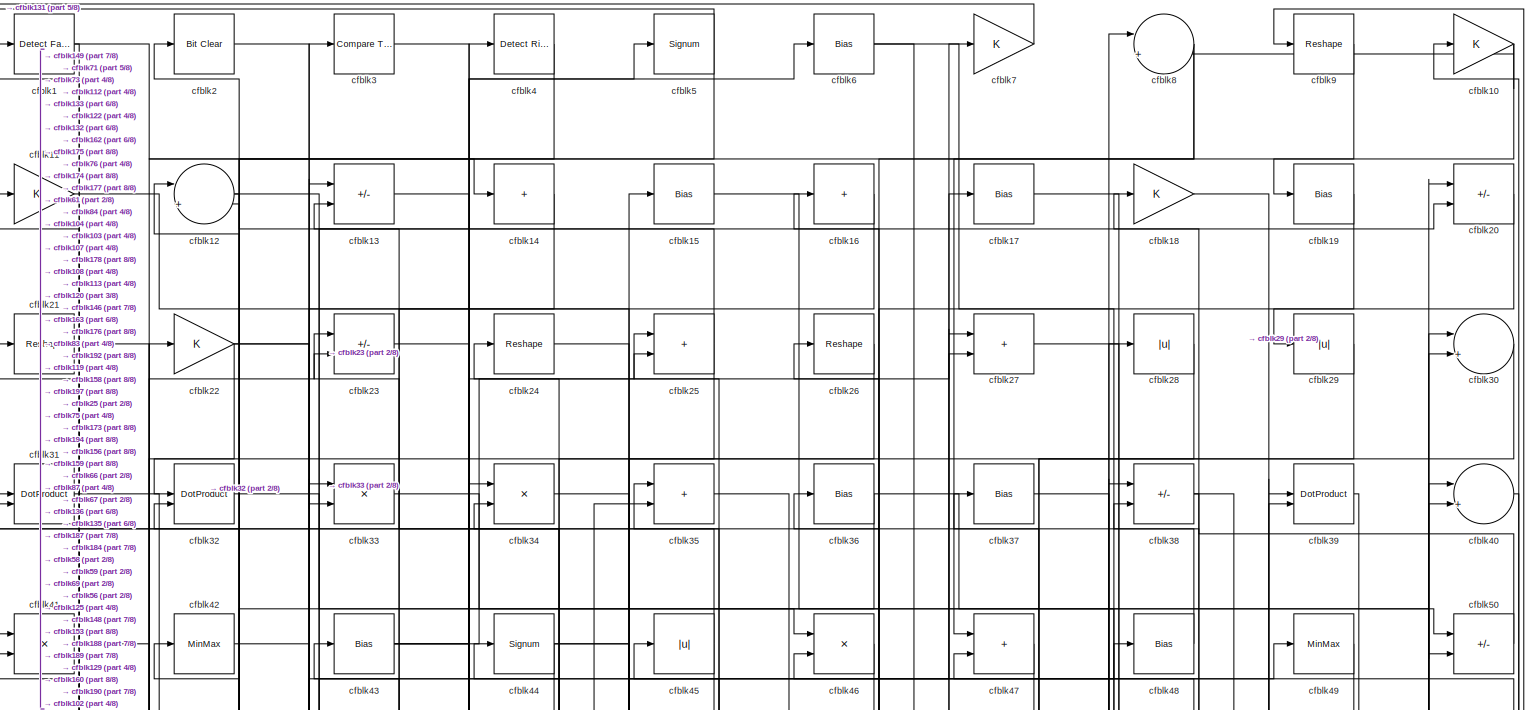
[diagram: root canvas - part 1/8, full width, top band]
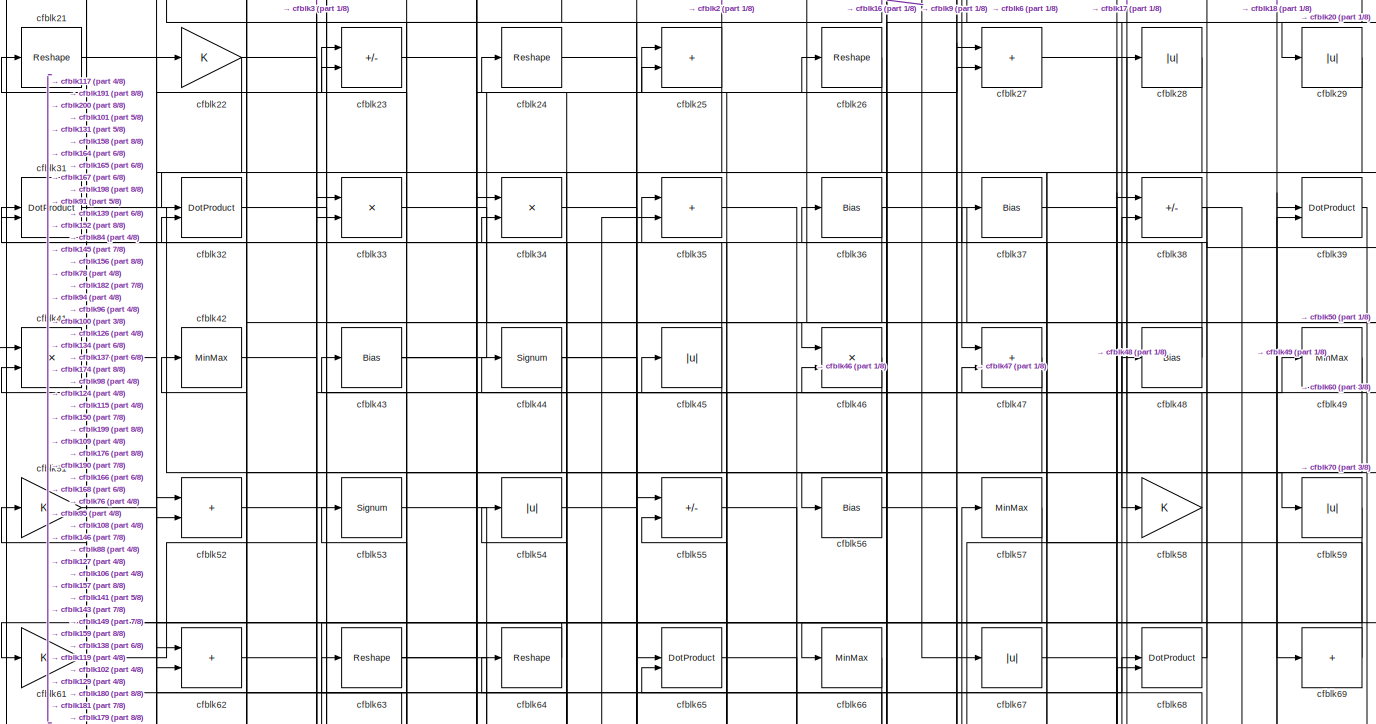
[diagram: root canvas - part 2/8, full width, top band]
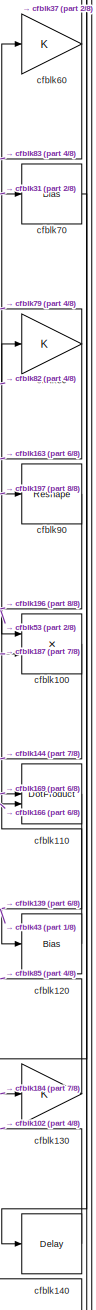
[diagram: root canvas - part 3/8, middle right region]
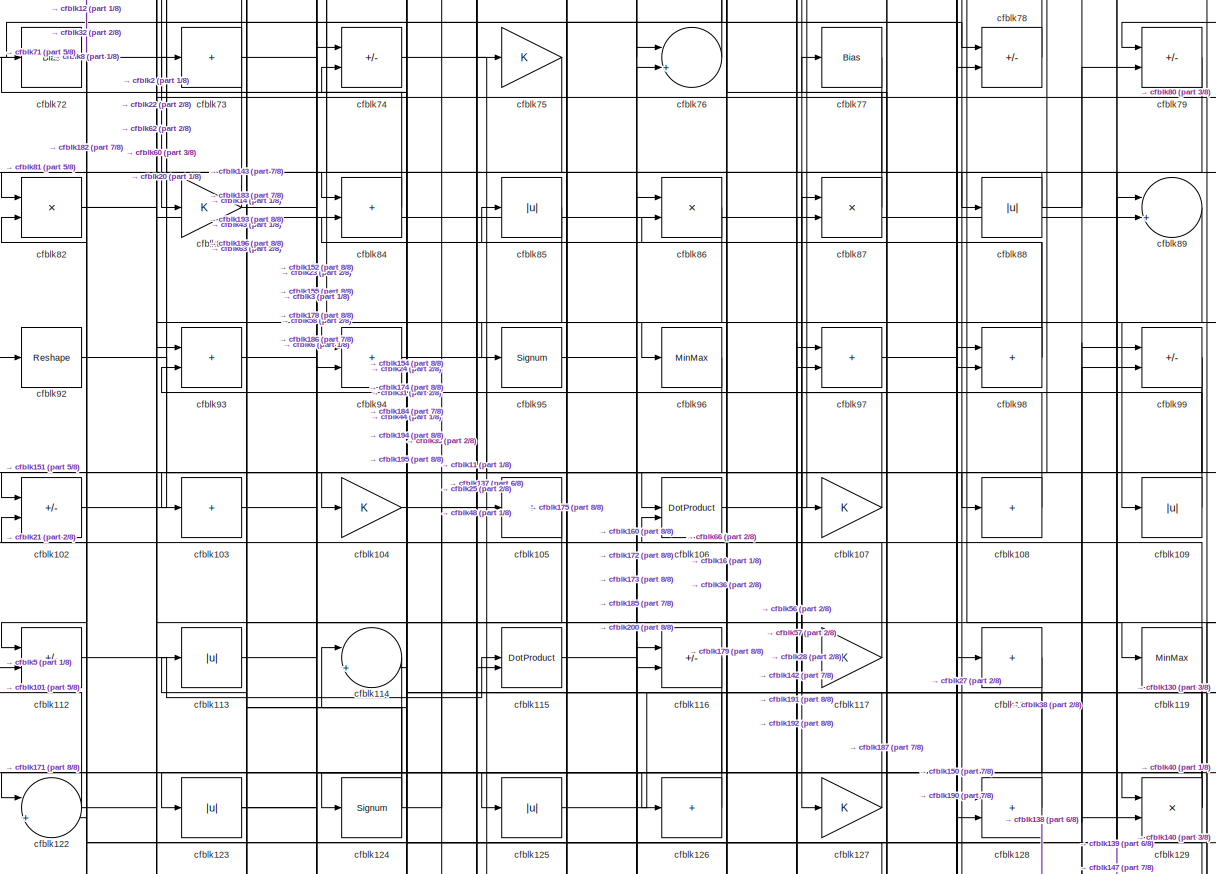
[diagram: root canvas - part 4/8, full width, middle band]
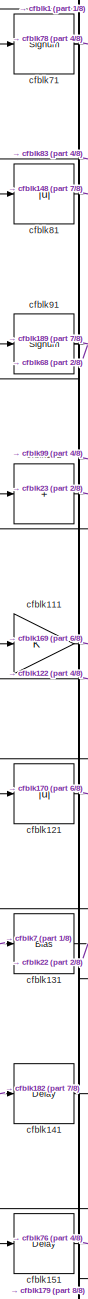
[diagram: root canvas - part 5/8, middle left region]
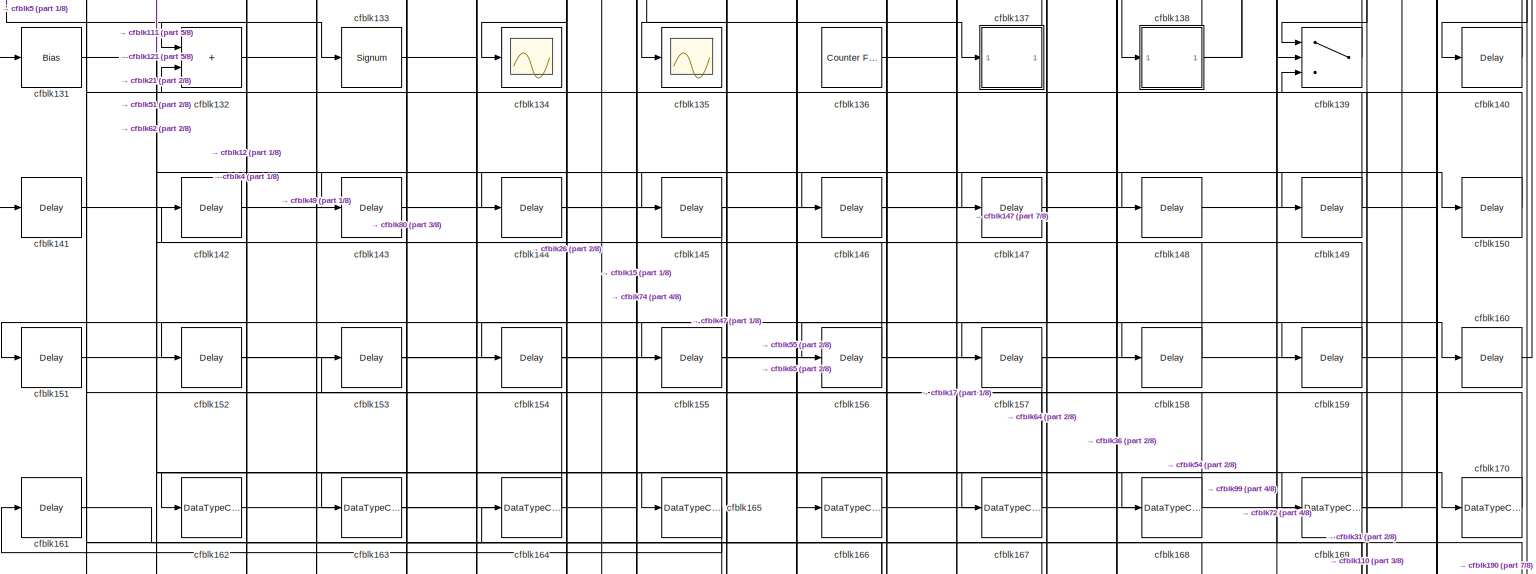
[diagram: root canvas - part 6/8, full width, bottom band]
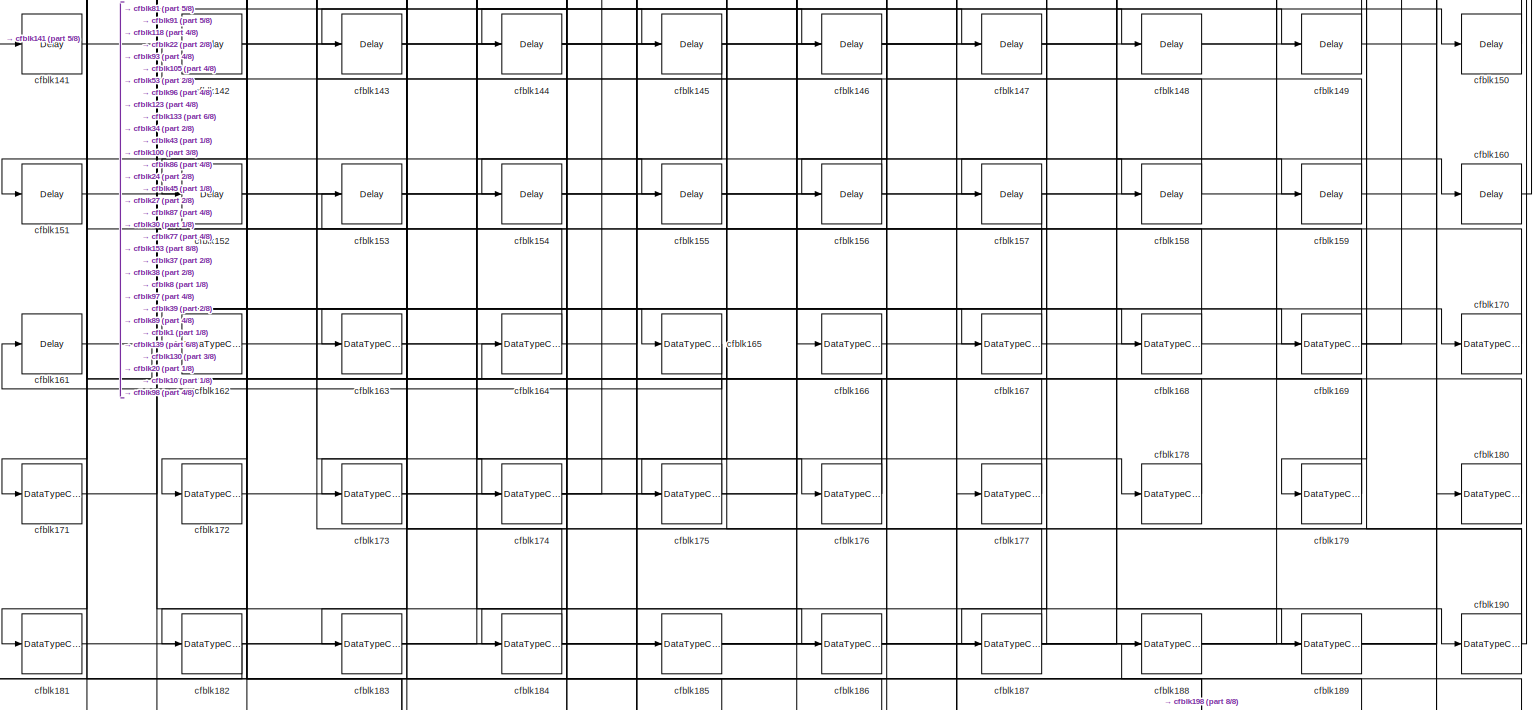
[diagram: root canvas - part 7/8, full width, bottom band]
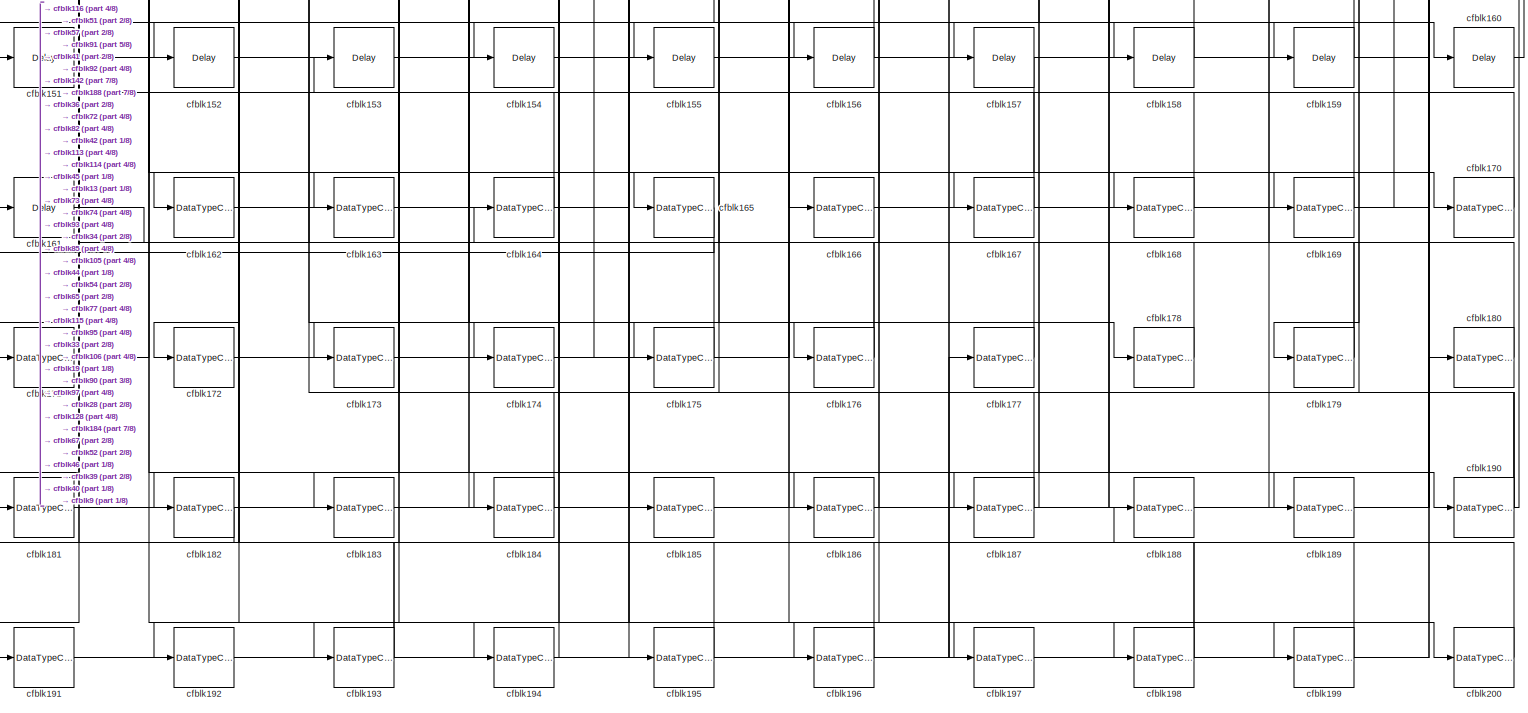
[diagram: root canvas - part 8/8, full width, bottom band]
MODEL slx_34461e3ff55c
KIND model
CONFIG AbsTol = auto
CONFIG EnableMultiTasking = off
CONFIG FixedStep = auto
CONFIG MaxStep = auto
CONFIG MinStep = auto
CONFIG RelTol = 1e-3
CONFIG SampleTimeConstraint = Unconstrained
CONFIG SolverName = VariableStepAuto
CONFIG StartTime = 0.0
CONFIG StopTime = 10.0
BLOCK [Reference] cfblk1  REF=hdlsllib/Logic and Bit
Operations/Detect Fall
Negative
  SourceBlock = hdlsllib/Logic and Bit\nOperations/Detect Fall\nNegative
  SourceType = Detect Fall Negative
BLOCK [Gain] cfblk10
BLOCK [Product] cfblk100
  Inputs = */
  RndMeth = Zero
  SaturateOnIntegerOverflow = on
BLOCK [Sum] cfblk101
  IconShape = rectangular
  Inputs = +
BLOCK [Sum] cfblk102
  IconShape = rectangular
  Inputs = +-
BLOCK [Sum] cfblk103
  IconShape = rectangular
  Inputs = +
BLOCK [Gain] cfblk104
BLOCK [Sum] cfblk105
  IconShape = rectangular
  Inputs = +
BLOCK [DotProduct] cfblk106
  OutDataTypeStr = Inherit: Inherit via internal rule
BLOCK [Gain] cfblk107
BLOCK [Sum] cfblk108
  IconShape = rectangular
  Inputs = +
BLOCK [Abs] cfblk109
  SaturateOnIntegerOverflow = off
BLOCK [Gain] cfblk11
BLOCK [DotProduct] cfblk110
  OutDataTypeStr = Inherit: Inherit via internal rule
BLOCK [Gain] cfblk111
BLOCK [Sum] cfblk112
  IconShape = rectangular
  Inputs = +-
BLOCK [Abs] cfblk113
  SaturateOnIntegerOverflow = off
BLOCK [Sum] cfblk114
  Inputs = |++
BLOCK [DotProduct] cfblk115
  OutDataTypeStr = Inherit: Inherit via internal rule
BLOCK [Sum] cfblk116
  IconShape = rectangular
  Inputs = +-
BLOCK [Gain] cfblk117
BLOCK [Sum] cfblk118
  IconShape = rectangular
  Inputs = +
BLOCK [MinMax] cfblk119
BLOCK [Sum] cfblk12
  Inputs = |++
BLOCK [Bias] cfblk120
  Bias = 0.0
  SaturateOnIntegerOverflow = off
BLOCK [Abs] cfblk121
  SaturateOnIntegerOverflow = off
BLOCK [Sum] cfblk122
  Inputs = |++
BLOCK [Abs] cfblk123
  SaturateOnIntegerOverflow = off
BLOCK [Signum] cfblk124
BLOCK [Abs] cfblk125
  SaturateOnIntegerOverflow = off
BLOCK [Sum] cfblk126
  IconShape = rectangular
  Inputs = +
BLOCK [Gain] cfblk127
BLOCK [Sum] cfblk128
  IconShape = rectangular
BLOCK [Product] cfblk129
  Inputs = */
  RndMeth = Zero
  SaturateOnIntegerOverflow = on
BLOCK [Sum] cfblk13
  IconShape = rectangular
  Inputs = +-
BLOCK [Gain] cfblk130
BLOCK [Bias] cfblk131
  Bias = 0.0
  SaturateOnIntegerOverflow = off
BLOCK [Sum] cfblk132
  IconShape = rectangular
BLOCK [Signum] cfblk133
BLOCK [Scope] cfblk134
  Floating = off
  NumInputPorts = 1
  ScopeSpecificationString = Simulink.scopes.TimeScopeBlockCfg('CurrentConfiguration', extmgr.ConfigurationSet(extmgr.Configuration('Core','General UI',true),extmgr.Configuration('Core','Source UI',true),extmgr.Configuration('Sources','WiredSimulink',true,'DataLoggingVariableName','ScopeData2','DataLoggingSaveFormat','Array','DataLoggingLimitDataPoints',true,'DataLoggingDecimation','1'),extmgr.Configuration('Visuals','Time Do...<+868ch>
BLOCK [Scope] cfblk135
  Floating = off
  NumInputPorts = 1
  ScopeSpecificationString = Simulink.scopes.TimeScopeBlockCfg('CurrentConfiguration', extmgr.ConfigurationSet(extmgr.Configuration('Core','General UI',true),extmgr.Configuration('Core','Source UI',true),extmgr.Configuration('Sources','WiredSimulink',true,'DataLoggingVariableName','ScopeData2','DataLoggingSaveFormat','Array','DataLoggingLimitDataPoints',true,'DataLoggingDecimation','1'),extmgr.Configuration('Visuals','Time Do...<+868ch>
BLOCK [Reference] cfblk136  REF=hdlsllib/Sources/Counter
Free-Running
  SourceBlock = hdlsllib/Sources/Counter\nFree-Running
  SourceType = Counter Free-Running
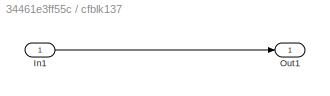
BLOCK [SubSystem] cfblk137
  LibrarySourceBlock = hdlsllib/Ports &\nSubsystems/Subsystem
BLOCK [Inport] cfblk137/In1
BLOCK [Outport] cfblk137/Out1
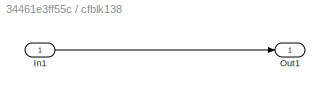
BLOCK [SubSystem] cfblk138
  LibrarySourceBlock = hdlsllib/Ports &\nSubsystems/Subsystem
BLOCK [Inport] cfblk138/In1
BLOCK [Outport] cfblk138/Out1
BLOCK [Switch] cfblk139
  InputSameDT = off
  SaturateOnIntegerOverflow = off
BLOCK [Sum] cfblk14
  IconShape = rectangular
  Inputs = +
BLOCK [Delay] cfblk140
  InputPortMap = u0
  SampleTime = 1
BLOCK [Delay] cfblk141
  InputPortMap = u0
  SampleTime = 1
BLOCK [Delay] cfblk142
  InputPortMap = u0
  SampleTime = 1
BLOCK [Delay] cfblk143
  InputPortMap = u0
  SampleTime = 1
BLOCK [Delay] cfblk144
  InputPortMap = u0
  SampleTime = 1
BLOCK [Delay] cfblk145
  InputPortMap = u0
  SampleTime = 1
BLOCK [Delay] cfblk146
  InputPortMap = u0
  SampleTime = 1
BLOCK [Delay] cfblk147
  InputPortMap = u0
  SampleTime = 1
BLOCK [Delay] cfblk148
  InputPortMap = u0
  SampleTime = 1
BLOCK [Delay] cfblk149
  InputPortMap = u0
  SampleTime = 1
BLOCK [Bias] cfblk15
  Bias = 0.0
  SaturateOnIntegerOverflow = off
BLOCK [Delay] cfblk150
  InputPortMap = u0
  SampleTime = 1
BLOCK [Delay] cfblk151
  InputPortMap = u0
  SampleTime = 1
BLOCK [Delay] cfblk152
  InputPortMap = u0
  SampleTime = 1
BLOCK [Delay] cfblk153
  InputPortMap = u0
  SampleTime = 1
BLOCK [Delay] cfblk154
  InputPortMap = u0
  SampleTime = 1
BLOCK [Delay] cfblk155
  InputPortMap = u0
  SampleTime = 1
BLOCK [Delay] cfblk156
  InputPortMap = u0
  SampleTime = 1
BLOCK [Delay] cfblk157
  InputPortMap = u0
  SampleTime = 1
BLOCK [Delay] cfblk158
  InputPortMap = u0
  SampleTime = 1
BLOCK [Delay] cfblk159
  InputPortMap = u0
  SampleTime = 1
BLOCK [Sum] cfblk16
  IconShape = rectangular
  Inputs = +
BLOCK [Delay] cfblk160
  InputPortMap = u0
  SampleTime = 1
BLOCK [Delay] cfblk161
  InputPortMap = u0
  SampleTime = 1
BLOCK [DataTypeConversion] cfblk162
  OutDataTypeStr = uint8
  RndMeth = Floor
  SaturateOnIntegerOverflow = off
BLOCK [DataTypeConversion] cfblk163
  OutDataTypeStr = uint8
  RndMeth = Floor
  SaturateOnIntegerOverflow = off
BLOCK [DataTypeConversion] cfblk164
  OutDataTypeStr = uint8
  RndMeth = Floor
  SaturateOnIntegerOverflow = off
BLOCK [DataTypeConversion] cfblk165
  OutDataTypeStr = uint8
  RndMeth = Floor
  SaturateOnIntegerOverflow = off
BLOCK [DataTypeConversion] cfblk166
  OutDataTypeStr = uint8
  RndMeth = Floor
  SaturateOnIntegerOverflow = off
BLOCK [DataTypeConversion] cfblk167
  OutDataTypeStr = uint8
  RndMeth = Floor
  SaturateOnIntegerOverflow = off
BLOCK [DataTypeConversion] cfblk168
  OutDataTypeStr = uint8
  RndMeth = Floor
  SaturateOnIntegerOverflow = off
BLOCK [DataTypeConversion] cfblk169
  RndMeth = Floor
  SaturateOnIntegerOverflow = off
BLOCK [Bias] cfblk17
  Bias = 0.0
  SaturateOnIntegerOverflow = off
BLOCK [DataTypeConversion] cfblk170
  OutDataTypeStr = uint8
  RndMeth = Floor
  SaturateOnIntegerOverflow = off
BLOCK [DataTypeConversion] cfblk171
  OutDataTypeStr = uint8
  RndMeth = Floor
  SaturateOnIntegerOverflow = off
BLOCK [DataTypeConversion] cfblk172
  OutDataTypeStr = uint8
  RndMeth = Floor
  SaturateOnIntegerOverflow = off
BLOCK [DataTypeConversion] cfblk173
  OutDataTypeStr = uint8
  RndMeth = Floor
  SaturateOnIntegerOverflow = off
BLOCK [DataTypeConversion] cfblk174
  RndMeth = Floor
  SaturateOnIntegerOverflow = off
BLOCK [DataTypeConversion] cfblk175
  OutDataTypeStr = uint8
  RndMeth = Floor
  SaturateOnIntegerOverflow = off
BLOCK [DataTypeConversion] cfblk176
  RndMeth = Floor
  SaturateOnIntegerOverflow = off
BLOCK [DataTypeConversion] cfblk177
  OutDataTypeStr = uint8
  RndMeth = Floor
  SaturateOnIntegerOverflow = off
BLOCK [DataTypeConversion] cfblk178
  OutDataTypeStr = uint8
  RndMeth = Floor
  SaturateOnIntegerOverflow = off
BLOCK [DataTypeConversion] cfblk179
  RndMeth = Floor
  SaturateOnIntegerOverflow = off
BLOCK [Gain] cfblk18
BLOCK [DataTypeConversion] cfblk180
  OutDataTypeStr = uint8
  RndMeth = Floor
  SaturateOnIntegerOverflow = off
BLOCK [DataTypeConversion] cfblk181
  OutDataTypeStr = uint8
  RndMeth = Floor
  SaturateOnIntegerOverflow = off
BLOCK [DataTypeConversion] cfblk182
  RndMeth = Floor
  SaturateOnIntegerOverflow = off
BLOCK [DataTypeConversion] cfblk183
  OutDataTypeStr = uint8
  RndMeth = Floor
  SaturateOnIntegerOverflow = off
BLOCK [DataTypeConversion] cfblk184
  RndMeth = Floor
  SaturateOnIntegerOverflow = off
BLOCK [DataTypeConversion] cfblk185
  OutDataTypeStr = uint8
  RndMeth = Floor
  SaturateOnIntegerOverflow = off
BLOCK [DataTypeConversion] cfblk186
  OutDataTypeStr = uint8
  RndMeth = Floor
  SaturateOnIntegerOverflow = off
BLOCK [DataTypeConversion] cfblk187
  RndMeth = Floor
  SaturateOnIntegerOverflow = off
BLOCK [DataTypeConversion] cfblk188
  OutDataTypeStr = uint8
  RndMeth = Floor
  SaturateOnIntegerOverflow = off
BLOCK [DataTypeConversion] cfblk189
  OutDataTypeStr = uint8
  RndMeth = Floor
  SaturateOnIntegerOverflow = off
BLOCK [Bias] cfblk19
  Bias = 0.0
  SaturateOnIntegerOverflow = off
BLOCK [DataTypeConversion] cfblk190
  RndMeth = Floor
  SaturateOnIntegerOverflow = off
BLOCK [DataTypeConversion] cfblk191
  OutDataTypeStr = uint8
  RndMeth = Floor
  SaturateOnIntegerOverflow = off
BLOCK [DataTypeConversion] cfblk192
  OutDataTypeStr = uint8
  RndMeth = Floor
  SaturateOnIntegerOverflow = off
BLOCK [DataTypeConversion] cfblk193
  RndMeth = Floor
  SaturateOnIntegerOverflow = off
BLOCK [DataTypeConversion] cfblk194
  OutDataTypeStr = uint8
  RndMeth = Floor
  SaturateOnIntegerOverflow = off
BLOCK [DataTypeConversion] cfblk195
  OutDataTypeStr = uint8
  RndMeth = Floor
  SaturateOnIntegerOverflow = off
BLOCK [DataTypeConversion] cfblk196
  RndMeth = Floor
  SaturateOnIntegerOverflow = off
BLOCK [DataTypeConversion] cfblk197
  OutDataTypeStr = uint8
  RndMeth = Floor
  SaturateOnIntegerOverflow = off
BLOCK [DataTypeConversion] cfblk198
  RndMeth = Floor
  SaturateOnIntegerOverflow = off
BLOCK [DataTypeConversion] cfblk199
  OutDataTypeStr = uint8
  RndMeth = Floor
  SaturateOnIntegerOverflow = off
BLOCK [Reference] cfblk2  REF=simulink/Logic and Bit
Operations/Bit Clear
  LibrarySourceBlock = hdlsllib/Logic and Bit\nOperations/Bit Clear
  SourceBlock = simulink/Logic and Bit\nOperations/Bit Clear
  SourceType = Bit Clear
BLOCK [Sum] cfblk20
  IconShape = rectangular
  Inputs = +-
BLOCK [DataTypeConversion] cfblk200
  OutDataTypeStr = uint8
  RndMeth = Floor
  SaturateOnIntegerOverflow = off
BLOCK [Reshape] cfblk21
BLOCK [Gain] cfblk22
BLOCK [Sum] cfblk23
  IconShape = rectangular
  Inputs = +-
BLOCK [Reshape] cfblk24
BLOCK [Sum] cfblk25
  IconShape = rectangular
BLOCK [Reshape] cfblk26
BLOCK [Sum] cfblk27
  IconShape = rectangular
BLOCK [Abs] cfblk28
  SaturateOnIntegerOverflow = off
BLOCK [Abs] cfblk29
  SaturateOnIntegerOverflow = off
BLOCK [Reference] cfblk3  REF=hdlsllib/Logic and Bit
Operations/Compare
To Zero
  SourceBlock = hdlsllib/Logic and Bit\nOperations/Compare\nTo Zero
  SourceType = Compare To Zero
BLOCK [Sum] cfblk30
  Inputs = |++
BLOCK [DotProduct] cfblk31
  OutDataTypeStr = Inherit: Inherit via internal rule
BLOCK [DotProduct] cfblk32
  OutDataTypeStr = Inherit: Inherit via internal rule
BLOCK [Product] cfblk33
  Inputs = */
  RndMeth = Zero
  SaturateOnIntegerOverflow = on
BLOCK [Product] cfblk34
  Inputs = */
  RndMeth = Zero
  SaturateOnIntegerOverflow = on
BLOCK [Sum] cfblk35
  IconShape = rectangular
BLOCK [Bias] cfblk36
  Bias = 0.0
  SaturateOnIntegerOverflow = off
BLOCK [Bias] cfblk37
  Bias = 0.0
  SaturateOnIntegerOverflow = off
BLOCK [Sum] cfblk38
  IconShape = rectangular
  Inputs = +-
BLOCK [DotProduct] cfblk39
  OutDataTypeStr = Inherit: Inherit via internal rule
BLOCK [Reference] cfblk4  REF=hdlsllib/Logic and Bit
Operations/Detect Rise
Nonnegative
  SourceBlock = hdlsllib/Logic and Bit\nOperations/Detect Rise\nNonnegative
  SourceType = Detect Rise Nonnegative
BLOCK [Sum] cfblk40
  Inputs = |++
BLOCK [Product] cfblk41
  Inputs = */
  RndMeth = Zero
  SaturateOnIntegerOverflow = on
BLOCK [MinMax] cfblk42
BLOCK [Bias] cfblk43
  Bias = 0.0
  SaturateOnIntegerOverflow = off
BLOCK [Signum] cfblk44
BLOCK [Abs] cfblk45
  SaturateOnIntegerOverflow = off
BLOCK [Product] cfblk46
  Inputs = */
  RndMeth = Zero
  SaturateOnIntegerOverflow = on
BLOCK [Sum] cfblk47
  IconShape = rectangular
BLOCK [Bias] cfblk48
  Bias = 0.0
  SaturateOnIntegerOverflow = off
BLOCK [MinMax] cfblk49
BLOCK [Signum] cfblk5
BLOCK [Sum] cfblk50
  IconShape = rectangular
  Inputs = +-
BLOCK [Gain] cfblk51
BLOCK [Sum] cfblk52
  IconShape = rectangular
BLOCK [Signum] cfblk53
BLOCK [Abs] cfblk54
  SaturateOnIntegerOverflow = off
BLOCK [Sum] cfblk55
  IconShape = rectangular
  Inputs = +-
BLOCK [Bias] cfblk56
  Bias = 0.0
  SaturateOnIntegerOverflow = off
BLOCK [MinMax] cfblk57
BLOCK [Gain] cfblk58
BLOCK [Abs] cfblk59
  SaturateOnIntegerOverflow = off
BLOCK [Bias] cfblk6
  Bias = 0.0
  SaturateOnIntegerOverflow = off
BLOCK [Gain] cfblk60
BLOCK [Gain] cfblk61
BLOCK [Sum] cfblk62
  IconShape = rectangular
BLOCK [Reshape] cfblk63
BLOCK [Reshape] cfblk64
BLOCK [DotProduct] cfblk65
  OutDataTypeStr = Inherit: Inherit via internal rule
BLOCK [MinMax] cfblk66
BLOCK [Abs] cfblk67
  SaturateOnIntegerOverflow = off
BLOCK [DotProduct] cfblk68
  OutDataTypeStr = Inherit: Inherit via internal rule
BLOCK [Sum] cfblk69
  IconShape = rectangular
  Inputs = +
BLOCK [Gain] cfblk7
BLOCK [Bias] cfblk70
  Bias = 0.0
  SaturateOnIntegerOverflow = off
BLOCK [Signum] cfblk71
BLOCK [Bias] cfblk72
  Bias = 0.0
  SaturateOnIntegerOverflow = off
BLOCK [Sum] cfblk73
  IconShape = rectangular
  Inputs = +
BLOCK [Sum] cfblk74
  IconShape = rectangular
  Inputs = +-
BLOCK [Gain] cfblk75
BLOCK [Sum] cfblk76
  Inputs = |++
BLOCK [Bias] cfblk77
  Bias = 0.0
  SaturateOnIntegerOverflow = off
BLOCK [Sum] cfblk78
  IconShape = rectangular
  Inputs = +-
BLOCK [Sum] cfblk79
  IconShape = rectangular
  Inputs = +-
BLOCK [Sum] cfblk8
  Inputs = |++
BLOCK [Gain] cfblk80
BLOCK [Abs] cfblk81
  SaturateOnIntegerOverflow = off
BLOCK [Product] cfblk82
  Inputs = */
  RndMeth = Zero
  SaturateOnIntegerOverflow = on
BLOCK [Gain] cfblk83
BLOCK [Sum] cfblk84
  IconShape = rectangular
BLOCK [Abs] cfblk85
  SaturateOnIntegerOverflow = off
BLOCK [Product] cfblk86
  Inputs = */
  RndMeth = Zero
  SaturateOnIntegerOverflow = on
BLOCK [Product] cfblk87
  Inputs = */
  RndMeth = Zero
  SaturateOnIntegerOverflow = on
BLOCK [Abs] cfblk88
  SaturateOnIntegerOverflow = off
BLOCK [Sum] cfblk89
  Inputs = |++
BLOCK [Reshape] cfblk9
BLOCK [Reshape] cfblk90
BLOCK [Signum] cfblk91
BLOCK [Reshape] cfblk92
BLOCK [Sum] cfblk93
  IconShape = rectangular
BLOCK [Sum] cfblk94
  IconShape = rectangular
BLOCK [Signum] cfblk95
BLOCK [MinMax] cfblk96
BLOCK [Sum] cfblk97
  IconShape = rectangular
BLOCK [Sum] cfblk98
  IconShape = rectangular
BLOCK [Sum] cfblk99
  IconShape = rectangular
  Inputs = +-
LINE cfblk100:1 -> cfblk144:1
LINE cfblk101:1 -> cfblk23:1
LINE cfblk102:1 -> cfblk20:2
LINE cfblk103:1 -> cfblk128:2
LINE cfblk104:1 -> cfblk48:1
LINE cfblk105:1 -> cfblk143:1
LINE cfblk106:1 -> cfblk28:1
LINE cfblk107:1 -> cfblk43:1
LINE cfblk108:1 -> cfblk36:1
LINE cfblk109:1 -> cfblk35:1
NET cfblk10:1 -> cfblk19:1, cfblk8:2
LINE cfblk110:1 -> cfblk139:1
LINE cfblk111:1 -> cfblk169:1
LINE cfblk112:1 -> cfblk115:1
LINE cfblk113:1 -> cfblk6:1
LINE cfblk114:1 -> cfblk193:1
LINE cfblk115:1 -> cfblk200:1
LINE cfblk116:1 -> cfblk171:1
LINE cfblk117:1 -> cfblk21:1
LINE cfblk118:1 -> cfblk182:1
NET cfblk119:1 -> cfblk125:1, cfblk44:1
LINE cfblk11:1 -> cfblk75:1
LINE cfblk120:1 -> cfblk60:1
LINE cfblk121:1 -> cfblk170:1
NET cfblk122:1 -> cfblk101:1, cfblk89:2
NET cfblk123:1 -> cfblk126:1, cfblk186:1
NET cfblk124:1 -> cfblk35:2, cfblk63:1, cfblk93:2
LINE cfblk125:1 -> cfblk40:1
LINE cfblk126:1 -> cfblk31:1
LINE cfblk127:1 -> cfblk57:1
LINE cfblk128:1 -> cfblk87:1
NET cfblk129:1 -> cfblk123:1, cfblk73:1, cfblk84:2
NET cfblk12:1 -> cfblk104:1, cfblk132:1
LINE cfblk130:1 -> cfblk85:1
LINE cfblk131:1 -> cfblk22:1
LINE cfblk132:1 -> cfblk49:1
LINE cfblk133:1 -> cfblk147:1
LINE cfblk136:1 -> cfblk17:1
LINE cfblk137/In1:1 -> cfblk137/Out1:1
LINE cfblk137:1 -> cfblk64:1
LINE cfblk138/In1:1 -> cfblk138/Out1:1
NET cfblk138:1 -> cfblk54:1, cfblk99:1, cfblk99:2
LINE cfblk139:1 -> cfblk31:2
LINE cfblk13:1 -> cfblk176:1
LINE cfblk140:1 -> cfblk102:2
LINE cfblk141:1 -> cfblk68:2
LINE cfblk142:1 -> cfblk87:2
LINE cfblk143:1 -> cfblk38:1
LINE cfblk144:1 -> cfblk185:1
LINE cfblk145:1 -> cfblk181:1
LINE cfblk146:1 -> cfblk27:2
LINE cfblk147:1 -> cfblk89:1
LINE cfblk148:1 -> cfblk20:1
LINE cfblk149:1 -> cfblk1:1
LINE cfblk14:1 -> cfblk103:1
LINE cfblk150:1 -> cfblk98:1
LINE cfblk151:1 -> cfblk76:2
LINE cfblk152:1 -> cfblk74:1
LINE cfblk153:1 -> cfblk40:2
LINE cfblk154:1 -> cfblk195:1
LINE cfblk155:1 -> cfblk128:1
LINE cfblk156:1 -> cfblk33:1
LINE cfblk157:1 -> cfblk172:1
LINE cfblk158:1 -> cfblk52:1
LINE cfblk159:1 -> cfblk46:2
LINE cfblk15:1 -> cfblk50:1
LINE cfblk160:1 -> cfblk9:1
LINE cfblk161:1 -> cfblk164:1
LINE cfblk162:1 -> cfblk15:1
LINE cfblk163:1 -> cfblk4:1
LINE cfblk164:1 -> cfblk62:1
LINE cfblk165:1 -> cfblk161:1
LINE cfblk166:1 -> cfblk110:2
LINE cfblk167:1 -> cfblk55:1
LINE cfblk168:1 -> cfblk55:2
NET cfblk169:1 -> cfblk110:1, cfblk132:2
LINE cfblk16:1 -> cfblk33:2
LINE cfblk170:1 -> cfblk111:1
LINE cfblk171:1 -> cfblk92:1
LINE cfblk172:1 -> cfblk116:1
LINE cfblk173:1 -> cfblk116:2
NET cfblk174:1 -> cfblk105:1, cfblk34:2
LINE cfblk175:1 -> cfblk42:1
NET cfblk176:1 -> cfblk51:1, cfblk65:2
LINE cfblk177:1 -> cfblk13:1
LINE cfblk178:1 -> cfblk13:2
NET cfblk179:1 -> cfblk106:2, cfblk91:1
LINE cfblk17:1 -> cfblk59:1
LINE cfblk180:1 -> cfblk39:1
LINE cfblk181:1 -> cfblk39:2
NET cfblk182:1 -> cfblk141:1, cfblk34:1
LINE cfblk183:1 -> cfblk118:1
NET cfblk184:1 -> cfblk130:1, cfblk153:1, cfblk8:1
LINE cfblk185:1 -> cfblk86:1
LINE cfblk186:1 -> cfblk86:2
NET cfblk187:1 -> cfblk100:2, cfblk77:1, cfblk93:1
LINE cfblk188:1 -> cfblk30:1
LINE cfblk189:1 -> cfblk30:2
LINE cfblk18:1 -> cfblk69:1
NET cfblk190:1 -> cfblk10:1, cfblk139:3, cfblk45:1, cfblk53:1
LINE cfblk191:1 -> cfblk97:1
LINE cfblk192:1 -> cfblk97:2
NET cfblk193:1 -> cfblk180:1, cfblk72:1, cfblk82:2
LINE cfblk194:1 -> cfblk114:1
LINE cfblk195:1 -> cfblk114:2
NET cfblk196:1 -> cfblk113:1, cfblk177:1
LINE cfblk197:1 -> cfblk90:1
NET cfblk198:1 -> cfblk142:1, cfblk188:1
LINE cfblk199:1 -> cfblk41:1
LINE cfblk19:1 -> cfblk156:1
NET cfblk1:1 -> cfblk14:1, cfblk71:1
LINE cfblk200:1 -> cfblk41:2
LINE cfblk20:1 -> cfblk29:1
LINE cfblk21:1 -> cfblk165:1
NET cfblk22:1 -> cfblk145:1, cfblk32:1, cfblk78:2
LINE cfblk23:1 -> cfblk96:1
LINE cfblk24:1 -> cfblk150:1
NET cfblk25:1 -> cfblk115:2, cfblk2:1
LINE cfblk26:1 -> cfblk134:1
LINE cfblk27:1 -> cfblk119:1
LINE cfblk28:1 -> cfblk157:1
LINE cfblk29:1 -> cfblk52:2
LINE cfblk2:1 -> cfblk84:1
LINE cfblk30:1 -> cfblk187:1
LINE cfblk31:1 -> cfblk70:1
LINE cfblk32:1 -> cfblk50:2
LINE cfblk33:1 -> cfblk46:1
LINE cfblk34:1 -> cfblk65:1
LINE cfblk35:1 -> cfblk76:1
NET cfblk36:1 -> cfblk138:1, cfblk152:1
LINE cfblk37:1 -> cfblk149:1
NET cfblk38:1 -> cfblk102:1, cfblk129:2
LINE cfblk39:1 -> cfblk179:1
LINE cfblk3:1 -> cfblk108:1
LINE cfblk40:1 -> cfblk129:1
LINE cfblk41:1 -> cfblk198:1
LINE cfblk42:1 -> cfblk174:1
NET cfblk43:1 -> cfblk120:1, cfblk146:1, cfblk7:1
NET cfblk44:1 -> cfblk158:1, cfblk192:1, cfblk197:1
NET cfblk45:1 -> cfblk12:2, cfblk173:1
LINE cfblk46:1 -> cfblk194:1
LINE cfblk47:1 -> cfblk135:1
LINE cfblk48:1 -> cfblk23:2
LINE cfblk49:1 -> cfblk56:1
LINE cfblk4:1 -> cfblk162:1
LINE cfblk50:1 -> cfblk18:1
LINE cfblk51:1 -> cfblk167:1
LINE cfblk52:1 -> cfblk27:1
LINE cfblk53:1 -> cfblk100:1
LINE cfblk54:1 -> cfblk199:1
LINE cfblk55:1 -> cfblk166:1
LINE cfblk56:1 -> cfblk88:1
LINE cfblk57:1 -> cfblk191:1
NET cfblk58:1 -> cfblk26:1, cfblk94:2
LINE cfblk59:1 -> cfblk62:2
NET cfblk5:1 -> cfblk112:2, cfblk133:1
NET cfblk60:1 -> cfblk37:1, cfblk83:1
LINE cfblk61:1 -> cfblk3:1
LINE cfblk62:1 -> cfblk117:1
NET cfblk63:1 -> cfblk127:1, cfblk25:2
LINE cfblk64:1 -> cfblk61:1
LINE cfblk65:1 -> cfblk168:1
LINE cfblk66:1 -> cfblk95:1
LINE cfblk67:1 -> cfblk159:1
LINE cfblk68:1 -> cfblk38:2
LINE cfblk69:1 -> cfblk47:2
NET cfblk6:1 -> cfblk58:1, cfblk67:1
LINE cfblk70:1 -> cfblk140:1
NET cfblk71:1 -> cfblk121:1, cfblk78:1
LINE cfblk72:1 -> cfblk139:2
NET cfblk73:1 -> cfblk11:1, cfblk122:1, cfblk155:1
LINE cfblk74:1 -> cfblk137:1
LINE cfblk75:1 -> cfblk124:1
LINE cfblk76:1 -> cfblk12:1
LINE cfblk77:1 -> cfblk175:1
LINE cfblk78:1 -> cfblk25:1
LINE cfblk79:1 -> cfblk98:2
LINE cfblk7:1 -> cfblk131:1
NET cfblk80:1 -> cfblk163:1, cfblk79:1
LINE cfblk81:1 -> cfblk148:1
NET cfblk82:1 -> cfblk80:1, cfblk94:1
NET cfblk83:1 -> cfblk5:1, cfblk81:1
LINE cfblk84:1 -> cfblk32:2
LINE cfblk85:1 -> cfblk154:1
LINE cfblk86:1 -> cfblk184:1
LINE cfblk87:1 -> cfblk16:1
NET cfblk88:1 -> cfblk79:2, cfblk82:1
LINE cfblk89:1 -> cfblk109:1
NET cfblk8:1 -> cfblk122:2, cfblk47:1
LINE cfblk90:1 -> cfblk196:1
NET cfblk91:1 -> cfblk189:1, cfblk68:1
LINE cfblk92:1 -> cfblk106:1
LINE cfblk93:1 -> cfblk178:1
LINE cfblk94:1 -> cfblk107:1
LINE cfblk95:1 -> cfblk160:1
LINE cfblk96:1 -> cfblk183:1
LINE cfblk97:1 -> cfblk190:1
NET cfblk98:1 -> cfblk24:1, cfblk74:2
NET cfblk99:1 -> cfblk112:1, cfblk151:1
LINE cfblk9:1 -> cfblk66:1
note: NET lines group one-source signal fan-out (src -> all destinations, sorted); 1:1 wires keep LINE
